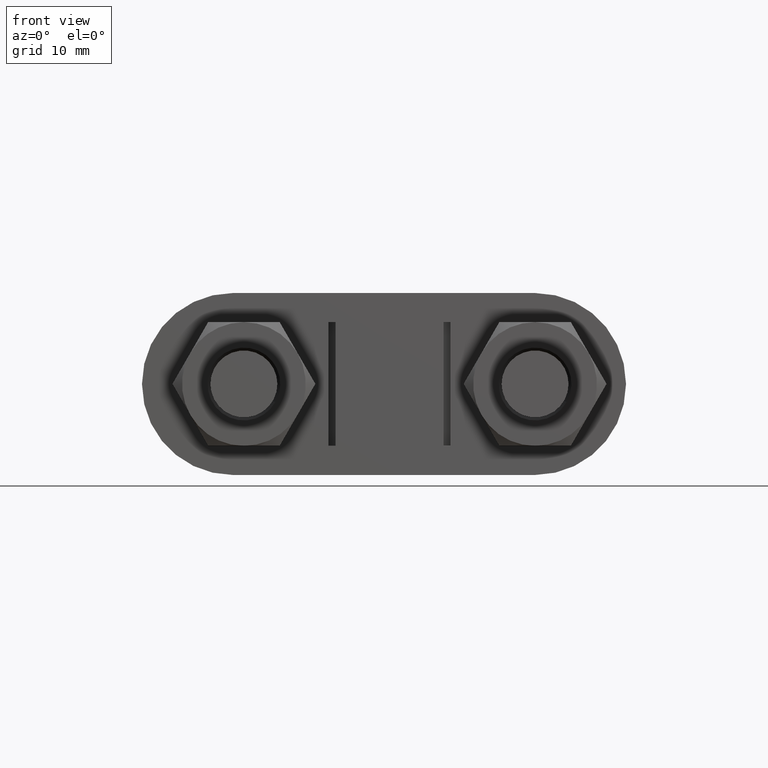
[diagram: clean part render]
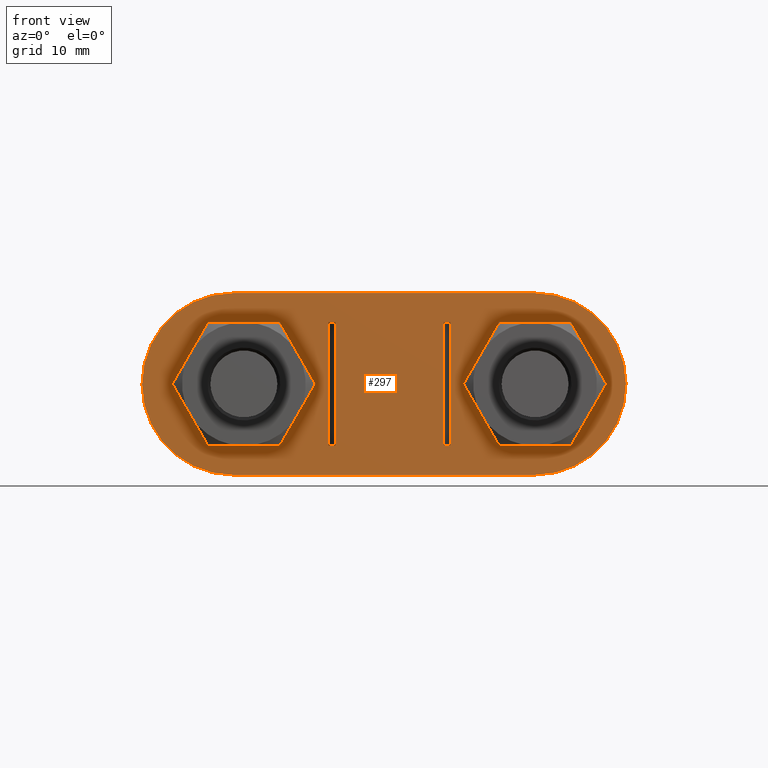
[diagram: same view with one face highlighted and labeled with its STEP entity id]
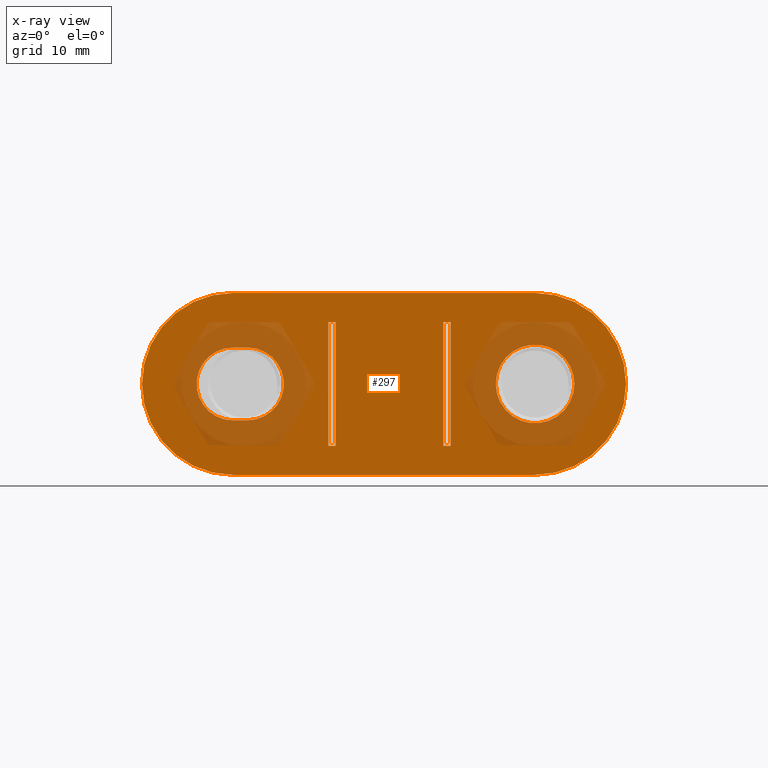
[diagram: x-ray of the same camera — body ghosted, the highlighted face saturated]
A machine part, front view. The second image highlights one B-rep face of the part: STEP entity #297.
The next image is the same camera in x-ray: the body ghosted, the highlighted face saturated — about 24% of this face is hidden behind the body in this view.
In plain terms, the highlighted planar face has unit normal (-0, 1, 0).
Its self-contained STEP definition (entity closure, byte-faithful):
#297 = ADVANCED_FACE( '', ( #451, #452, #453, #454, #455 ), #456, .F. );
#451 = FACE_BOUND( '', #1522, .T. );
#452 = FACE_OUTER_BOUND( '', #1523, .T. );
#453 = FACE_BOUND( '', #1524, .T. );
#454 = FACE_BOUND( '', #1525, .T. );
#455 = FACE_BOUND( '', #1526, .T. );
#456 = PLANE( '', #1527 );
#1522 = EDGE_LOOP( '', ( #1900, #1901, #1902, #1903 ) );
#1523 = EDGE_LOOP( '', ( #1904, #1905, #1906, #1907, #1908, #1909 ) );
#1524 = EDGE_LOOP( '', ( #1910 ) );
#1525 = EDGE_LOOP( '', ( #1911, #1912, #1913, #1914 ) );
#1526 = EDGE_LOOP( '', ( #1915, #1916, #1917, #1918 ) );
#1527 = AXIS2_PLACEMENT_3D( '', #1919, #1920, #1921 );
#1900 = ORIENTED_EDGE( '', *, *, #2581, .F. );
#1901 = ORIENTED_EDGE( '', *, *, #2582, .T. );
#1902 = ORIENTED_EDGE( '', *, *, #2583, .T. );
#1903 = ORIENTED_EDGE( '', *, *, #2584, .F. );
#1904 = ORIENTED_EDGE( '', *, *, #2585, .F. );
#1905 = ORIENTED_EDGE( '', *, *, #2586, .F. );
#1906 = ORIENTED_EDGE( '', *, *, #2587, .F. );
#1907 = ORIENTED_EDGE( '', *, *, #2588, .F. );
#1908 = ORIENTED_EDGE( '', *, *, #2589, .F. );
#1909 = ORIENTED_EDGE( '', *, *, #2590, .F. );
#1910 = ORIENTED_EDGE( '', *, *, #2591, .T. );
#1911 = ORIENTED_EDGE( '', *, *, #2592, .F. );
#1912 = ORIENTED_EDGE( '', *, *, #2593, .F. );
#1913 = ORIENTED_EDGE( '', *, *, #2594, .F. );
#1914 = ORIENTED_EDGE( '', *, *, #2595, .F. );
#1915 = ORIENTED_EDGE( '', *, *, #2596, .T. );
#1916 = ORIENTED_EDGE( '', *, *, #2597, .T. );
#1917 = ORIENTED_EDGE( '', *, *, #2598, .F. );
#1918 = ORIENTED_EDGE( '', *, *, #2599, .F. );
#1919 = CARTESIAN_POINT( '', ( -21.5000000000070, 29.7199999999800, 2.00484648756024E-007 ) );
#1920 = DIRECTION( '', ( -9.38505765720277E-013, 1.00000000000000, 8.50274527685322E-013 ) );
#1921 = DIRECTION( '', ( 9.32517985052728E-009, -8.50274518933586E-013, 1.00000000000000 ) );
#2581 = EDGE_CURVE( '', #2851, #2852, #2853, .T. );
#2582 = EDGE_CURVE( '', #2851, #2854, #2855, .T. );
#2583 = EDGE_CURVE( '', #2854, #2856, #2857, .T. );
#2584 = EDGE_CURVE( '', #2852, #2856, #2858, .T. );
#2585 = EDGE_CURVE( '', #2859, #2860, #2861, .T. );
#2586 = EDGE_CURVE( '', #2862, #2859, #2863, .T. );
#2587 = EDGE_CURVE( '', #2864, #2862, #2865, .T. );
#2588 = EDGE_CURVE( '', #2866, #2864, #2867, .T. );
#2589 = EDGE_CURVE( '', #2868, #2866, #2869, .T. );
#2590 = EDGE_CURVE( '', #2860, #2868, #2870, .T. );
#2591 = EDGE_CURVE( '', #2871, #2871, #2872, .T. );
#2592 = EDGE_CURVE( '', #2873, #2874, #2875, .T. );
#2593 = EDGE_CURVE( '', #2876, #2873, #2877, .T. );
#2594 = EDGE_CURVE( '', #2878, #2876, #2879, .T. );
#2595 = EDGE_CURVE( '', #2874, #2878, #2880, .T. );
#2596 = EDGE_CURVE( '', #2881, #2882, #2883, .T. );
#2597 = EDGE_CURVE( '', #2882, #2884, #2885, .T. );
#2598 = EDGE_CURVE( '', #2886, #2884, #2887, .T. );
#2599 = EDGE_CURVE( '', #2881, #2886, #2888, .T. );
#2851 = VERTEX_POINT( '', #3435 );
#2852 = VERTEX_POINT( '', #3436 );
#2853 = LINE( '', #3437, #3438 );
#2854 = VERTEX_POINT( '', #3439 );
#2855 = LINE( '', #3440, #3441 );
#2856 = VERTEX_POINT( '', #3442 );
#2857 = LINE( '', #3443, #3444 );
#2858 = LINE( '', #3445, #3446 );
#2859 = VERTEX_POINT( '', #3447 );
#2860 = VERTEX_POINT( '', #3448 );
#2861 = CIRCLE( '', #3449, 12.5000000000000 );
#2862 = VERTEX_POINT( '', #3450 );
#2863 = CIRCLE( '', #3451, 12.5000000000000 );
#2864 = VERTEX_POINT( '', #3452 );
#2865 = LINE( '', #3453, #3454 );
#2866 = VERTEX_POINT( '', #3455 );
#2867 = CIRCLE( '', #3456, 12.5000000000000 );
#2868 = VERTEX_POINT( '', #3457 );
#2869 = CIRCLE( '', #3458, 12.5000000000000 );
#2870 = LINE( '', #3459, #3460 );
#2871 = VERTEX_POINT( '', #3461 );
#2872 = CIRCLE( '', #3462, 5.40000000000000 );
#2873 = VERTEX_POINT( '', #3463 );
#2874 = VERTEX_POINT( '', #3464 );
#2875 = CIRCLE( '', #3465, 5.00000000000000 );
#2876 = VERTEX_POINT( '', #3466 );
#2877 = LINE( '', #3467, #3468 );
#2878 = VERTEX_POINT( '', #3469 );
#2879 = CIRCLE( '', #3470, 5.00000000000000 );
#2880 = LINE( '', #3471, #3472 );
#2881 = VERTEX_POINT( '', #3473 );
#2882 = VERTEX_POINT( '', #3474 );
#2883 = LINE( '', #3475, #3476 );
#2884 = VERTEX_POINT( '', #3477 );
#2885 = LINE( '', #3478, #3479 );
#2886 = VERTEX_POINT( '', #3480 );
#2887 = LINE( '', #3481, #3482 );
#2888 = LINE( '', #3483, #3484 );
#3435 = CARTESIAN_POINT( '', ( -8.40000007927097, 29.7199999999996, -8.49999992167521 ) );
#3436 = CARTESIAN_POINT( '', ( -7.40000007927097, 29.7200000000005, -8.49999993100039 ) );
#3437 = CARTESIAN_POINT( '', ( -8.40000007927097, 29.7199999999996, -8.49999992167521 ) );
#3438 = VECTOR( '', #4065, 1000.00000000000 );
#3439 = CARTESIAN_POINT( '', ( -8.39999992074291, 29.7199999999851, 8.50000007832479 ) );
#3440 = CARTESIAN_POINT( '', ( -8.40000007927097, 29.7199999999996, -8.49999992167521 ) );
#3441 = VECTOR( '', #4066, 1000.00000000000 );
#3442 = CARTESIAN_POINT( '', ( -7.39999992074291, 29.7199999999861, 8.50000006899961 ) );
#3443 = CARTESIAN_POINT( '', ( -8.39999992074291, 29.7199999999851, 8.50000007832479 ) );
#3444 = VECTOR( '', #4067, 1000.00000000000 );
#3445 = CARTESIAN_POINT( '', ( -7.40000007927097, 29.7200000000005, -8.49999993100039 ) );
#3446 = VECTOR( '', #4068, 1000.00000000000 );
#3447 = CARTESIAN_POINT( '', ( -34.0000000000070, 29.7199999999683, 3.17049396887615E-007 ) );
#3448 = CARTESIAN_POINT( '', ( -21.4999998834422, 29.7199999999694, 12.5000002004846 ) );
#3449 = AXIS2_PLACEMENT_3D( '', #4069, #4070, #4071 );
#3450 = CARTESIAN_POINT( '', ( -21.5000001165717, 29.7199999999907, -12.4999997995153 ) );
#3451 = AXIS2_PLACEMENT_3D( '', #4072, #4073, #4074 );
#3452 = CARTESIAN_POINT( '', ( 19.9999998834283, 29.7200000000296, -12.5000001865103 ) );
#3453 = CARTESIAN_POINT( '', ( 19.9999998834283, 29.7200000000296, -12.5000001865103 ) );
#3454 = VECTOR( '', #4075, 1000.00000000000 );
#3455 = CARTESIAN_POINT( '', ( 32.4999999999931, 29.7200000000307, -3.03075056233555E-007 ) );
#3456 = AXIS2_PLACEMENT_3D( '', #4076, #4077, #4078 );
#3457 = CARTESIAN_POINT( '', ( 20.0000001165578, 29.7200000000084, 12.4999998134897 ) );
#3458 = AXIS2_PLACEMENT_3D( '', #4079, #4080, #4081 );
#3459 = CARTESIAN_POINT( '', ( -21.4999998834422, 29.7199999999694, 12.5000002004846 ) );
#3460 = VECTOR( '', #4082, 1000.00000000000 );
#3461 = CARTESIAN_POINT( '', ( 25.3999999999931, 29.7200000000241, -2.36866284498982E-007 ) );
#3462 = AXIS2_PLACEMENT_3D( '', #4083, #4084, #4085 );
#3463 = CARTESIAN_POINT( '', ( -21.4999999533811, 29.7199984999076, 5.00000020048465 ) );
#3464 = CARTESIAN_POINT( '', ( -21.5000000466329, 29.7199984999161, -4.99999979951535 ) );
#3465 = AXIS2_PLACEMENT_3D( '', #4086, #4087, #4088 );
#3466 = CARTESIAN_POINT( '', ( -19.4999999533811, 29.7199984999095, 5.00000018183429 ) );
#3467 = CARTESIAN_POINT( '', ( -19.4999999533811, 29.7199984999095, 5.00000018183429 ) );
#3468 = VECTOR( '', #4089, 1000.00000000000 );
#3469 = CARTESIAN_POINT( '', ( -19.5000000466329, 29.7199984999180, -4.99999981816571 ) );
#3470 = AXIS2_PLACEMENT_3D( '', #4090, #4091, #4092 );
#3471 = CARTESIAN_POINT( '', ( -21.5000000466329, 29.7199984999161, -4.99999979951535 ) );
#3472 = VECTOR( '', #4093, 1000.00000000000 );
#3473 = CARTESIAN_POINT( '', ( 8.39999992072904, 29.7200000000153, -8.50000007833823 ) );
#3474 = CARTESIAN_POINT( '', ( 7.39999992072903, 29.7200000000144, -8.50000006901305 ) );
#3475 = CARTESIAN_POINT( '', ( 8.39999992072904, 29.7200000000153, -8.50000007833823 ) );
#3476 = VECTOR( '', #4094, 1000.00000000000 );
#3477 = CARTESIAN_POINT( '', ( 7.40000007925709, 29.7199999999999, 8.49999993098695 ) );
#3478 = CARTESIAN_POINT( '', ( 7.39999992072903, 29.7200000000144, -8.50000006901305 ) );
#3479 = VECTOR( '', #4095, 1000.00000000000 );
#3480 = CARTESIAN_POINT( '', ( 8.40000007925709, 29.7200000000009, 8.49999992166177 ) );
#3481 = CARTESIAN_POINT( '', ( 8.40000007925709, 29.7200000000009, 8.49999992166177 ) );
#3482 = VECTOR( '', #4096, 1000.00000000000 );
#3483 = CARTESIAN_POINT( '', ( 8.39999992072904, 29.7200000000153, -8.50000007833823 ) );
#3484 = VECTOR( '', #4097, 1000.00000000000 );
#4065 = DIRECTION( '', ( 1.00000000000000, 9.38505773649239E-013, -9.32517985052728E-009 ) );
#4066 = DIRECTION( '', ( 9.32517985052728E-009, -8.50274518933586E-013, 1.00000000000000 ) );
#4067 = DIRECTION( '', ( 1.00000000000000, 9.38505773649239E-013, -9.32517985052728E-009 ) );
#4068 = DIRECTION( '', ( 9.32517985052728E-009, -8.50274518933586E-013, 1.00000000000000 ) );
#4069 = CARTESIAN_POINT( '', ( -21.5000000000070, 29.7199999999800, 2.00484648756024E-007 ) );
#4070 = DIRECTION( '', ( -9.38505765720277E-013, 1.00000000000000, 8.50274527685322E-013 ) );
#4071 = DIRECTION( '', ( -1.00000000000000, -9.38505773649240E-013, 9.32517971174940E-009 ) );
#4072 = CARTESIAN_POINT( '', ( -21.5000000000070, 29.7199999999800, 2.00484652225471E-007 ) );
#4073 = DIRECTION( '', ( -9.38505765720276E-013, 1.00000000000000, 8.50274527685322E-013 ) );
#4074 = DIRECTION( '', ( -9.32517957297152E-009, 8.50274518933587E-013, -1.00000000000000 ) );
#4075 = DIRECTION( '', ( -1.00000000000000, -9.38505773649239E-013, 9.32517985052728E-009 ) );
#4076 = CARTESIAN_POINT( '', ( 19.9999999999931, 29.7200000000190, -1.86510311571411E-007 ) );
#4077 = DIRECTION( '', ( -9.38505765720277E-013, 1.00000000000000, 8.50274527685322E-013 ) );
#4078 = DIRECTION( '', ( 1.00000000000000, 9.38505773649240E-013, -9.32517971174940E-009 ) );
#4079 = CARTESIAN_POINT( '', ( 19.9999999999931, 29.7200000000190, -1.86510315040858E-007 ) );
#4080 = DIRECTION( '', ( -9.38505765720277E-013, 1.00000000000000, 8.50274527685322E-013 ) );
#4081 = DIRECTION( '', ( 9.32517929541577E-009, -8.50274518933587E-013, 1.00000000000000 ) );
#4082 = DIRECTION( '', ( 1.00000000000000, 9.38505773649239E-013, -9.32517985052728E-009 ) );
#4083 = CARTESIAN_POINT( '', ( 19.9999999999931, 29.7200000000190, -1.86510313306134E-007 ) );
#4084 = DIRECTION( '', ( -9.38505765720277E-013, 1.00000000000000, 8.50274527685322E-013 ) );
#4085 = DIRECTION( '', ( 1.00000000000000, 9.38505773649239E-013, -9.32517985052728E-009 ) );
#4086 = CARTESIAN_POINT( '', ( -21.5000000000070, 29.7199984999118, 2.00484650489472E-007 ) );
#4087 = DIRECTION( '', ( 9.38505765720277E-013, -1.00000000000000, -8.50274527685322E-013 ) );
#4088 = DIRECTION( '', ( 9.32517985052728E-009, -8.50274518933587E-013, 1.00000000000000 ) );
#4089 = DIRECTION( '', ( -1.00000000000000, -9.38505773649239E-013, 9.32517985052728E-009 ) );
#4090 = CARTESIAN_POINT( '', ( -19.5000000000070, 29.7199984999137, 1.81834290788418E-007 ) );
#4091 = DIRECTION( '', ( 9.38505765720277E-013, -1.00000000000000, -8.50274527685322E-013 ) );
#4092 = DIRECTION( '', ( -9.32517985052728E-009, 8.50274518933587E-013, -1.00000000000000 ) );
#4093 = DIRECTION( '', ( 1.00000000000000, 9.38505773649239E-013, -9.32517985052728E-009 ) );
#4094 = DIRECTION( '', ( -1.00000000000000, -9.38383313013857E-013, 9.32517985052728E-009 ) );
#4095 = DIRECTION( '', ( 9.32517985052728E-009, -8.50274518933586E-013, 1.00000000000000 ) );
#4096 = DIRECTION( '', ( -1.00000000000000, -9.38383313013857E-013, 9.32517985052728E-009 ) );
#4097 = DIRECTION( '', ( 9.32517985052728E-009, -8.50274518933586E-013, 1.00000000000000 ) );